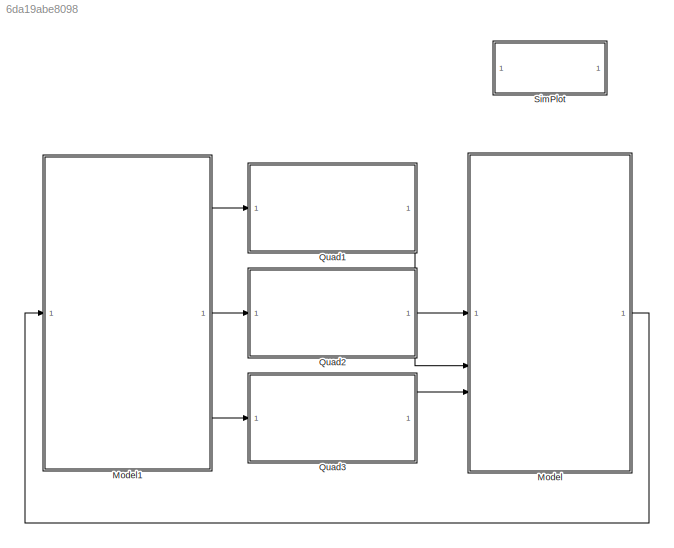
MODEL slx_6da19abe8098
KIND model
CONFIG StartFcn = run('control_init.m');
BLOCK [ModelReference] Model
  ModelNameDialog = payload_6dof.slx
  ModelReferenceVersion = 1.103
BLOCK [ModelReference] Model1
  ModelNameDialog = control_6dof.slx
  ModelReferenceVersion = 1.421
BLOCK [ModelReference] Quad1
  ModelNameDialog = quadrotors.slx
  ModelReferenceVersion = 1.84
BLOCK [ModelReference] Quad2
  ModelNameDialog = quadrotors.slx
  ModelReferenceVersion = 1.84
BLOCK [ModelReference] Quad3
  ModelNameDialog = quadrotors.slx
  ModelReferenceVersion = 1.84
BLOCK [SubSystem] SimPlot
  OpenFcn = run('simplot.m');
LINE Model1:1 -> Quad1:1
LINE Model1:2 -> Quad2:1
LINE Model1:3 -> Quad3:1
LINE Model:1 -> Model1:1
LINE Quad1:1 -> Model:1
LINE Quad2:1 -> Model:2
LINE Quad3:1 -> Model:3
